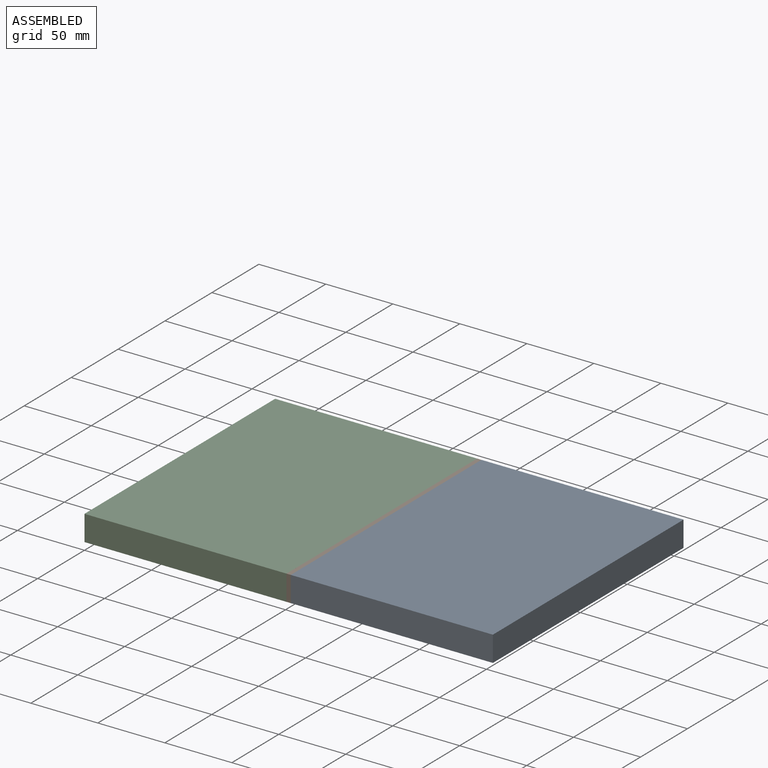
[diagram: assembled view]
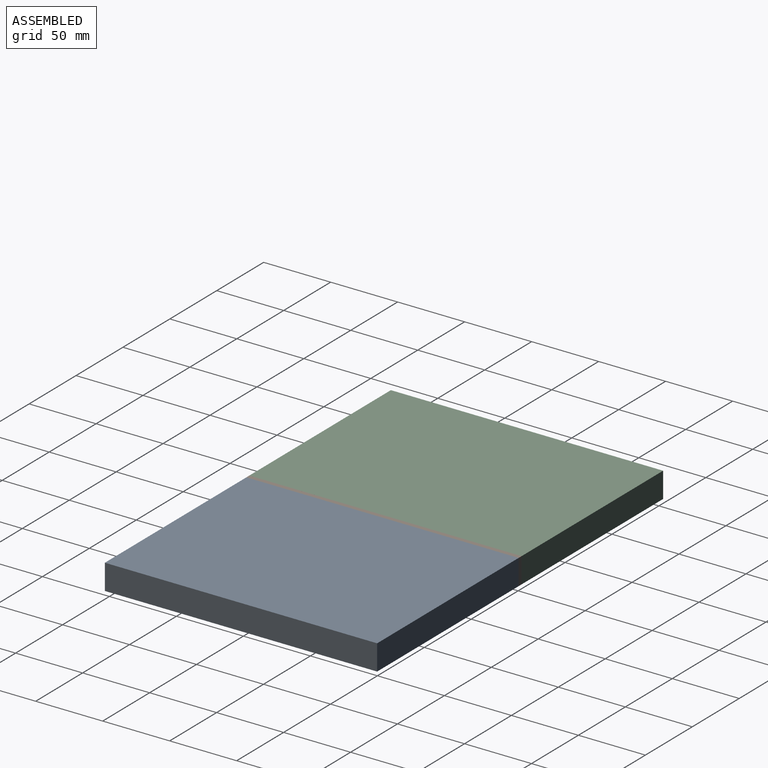
[diagram: assembled view, second angle]
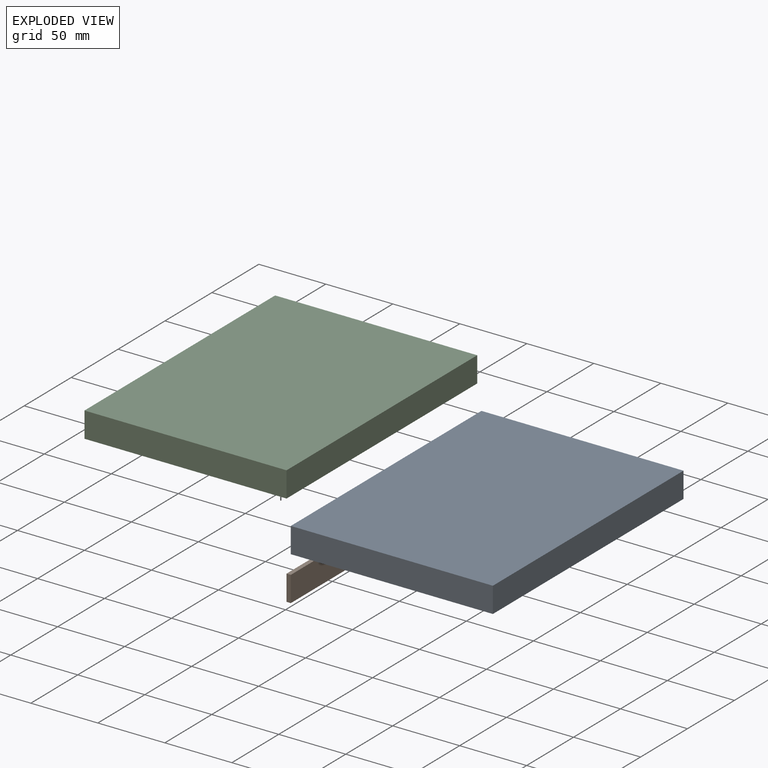
[diagram: exploded view]
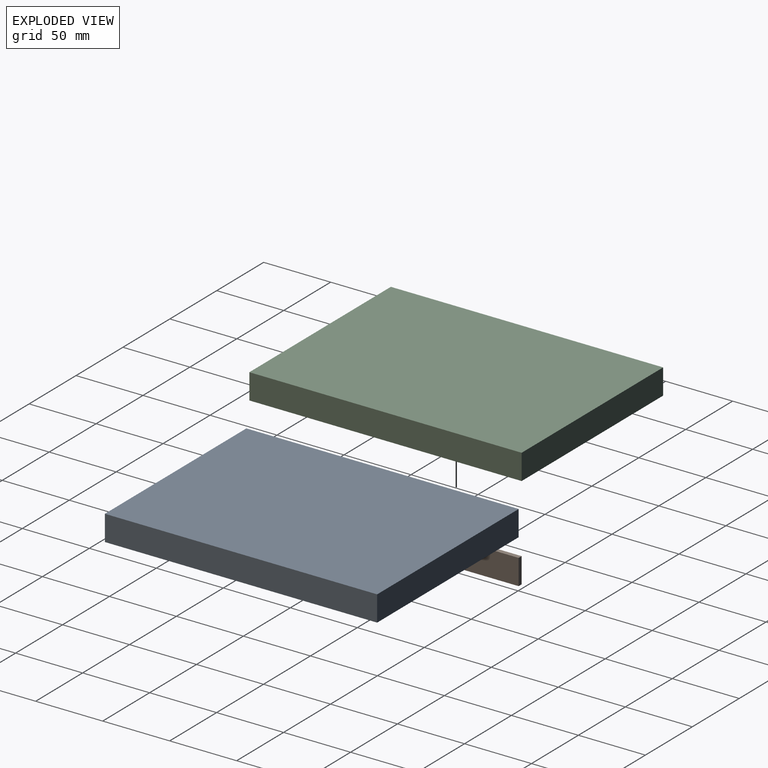
[diagram: exploded view, second angle]
ASSEMBLY  parts=3 mates=2
PART A: 6 faces, bbox 150.8x203.2x19.1 mm
  f0: plane 203.2x19.05mm, normal (-1,0,0), area 3871mm2, adj f1,f3,f4,f5
  f1: plane 150.81x19.05mm, normal (0,-1,0), area 2873mm2, adj f0,f2,f4,f5
  f2: plane 203.2x19.05mm, normal (1,0,0), area 3871mm2, adj f1,f3,f4,f5
  f3: plane 150.81x19.05mm, normal (0,1,0), area 2873mm2, adj f0,f2,f4,f5
  f4: plane 203.2x150.81mm, normal (0,0,1), area 30645.1mm2, adj f0,f1,f2,f3
  f5: plane 203.2x150.81mm, normal (0,0,-1), area 30645.1mm2, adj f0,f1,f2,f3
PART B: 6 faces, bbox 3.2x203.2x19.1 mm
  f0: plane 203.2x19.05mm, normal (-1,0,0), area 3871mm2, adj f1,f3,f4,f5
  f1: plane 19.05x3.18mm, normal (0,-1,0), area 60.5mm2, adj f0,f2,f4,f5
  f2: plane 203.2x19.05mm, normal (1,0,0), area 3871mm2, adj f1,f3,f4,f5
  f3: plane 19.05x3.18mm, normal (0,1,0), area 60.5mm2, adj f0,f2,f4,f5
  f4: plane 203.2x3.18mm, normal (0,0,1), area 645.2mm2, adj f0,f1,f2,f3
  f5: plane 203.2x3.18mm, normal (0,0,-1), area 645.2mm2, adj f0,f1,f2,f3
PART C: 6 faces, bbox 150.8x203.2x19.1 mm
  f0: plane 203.2x19.05mm, normal (-1,0,0), area 3871mm2, adj f1,f3,f4,f5
  f1: plane 150.81x19.05mm, normal (0,-1,0), area 2873mm2, adj f0,f2,f4,f5
  f2: plane 203.2x19.05mm, normal (1,0,0), area 3871mm2, adj f1,f3,f4,f5
  f3: plane 150.81x19.05mm, normal (0,1,0), area 2873mm2, adj f0,f2,f4,f5
  f4: plane 203.2x150.81mm, normal (0,0,1), area 30645.1mm2, adj f0,f1,f2,f3
  f5: plane 203.2x150.81mm, normal (0,0,-1), area 30645.1mm2, adj f0,f1,f2,f3
PLACE A at identity
PLACE B at identity
PLACE C at identity fixed
MATE fastened B.f4 <-> A.f4  axis (0,0,1) through (153.99,101.6,19.05)mm
MATE fastened C.f4 <-> B.f4  axis (0,0,1) through (150.81,101.6,19.05)mm
